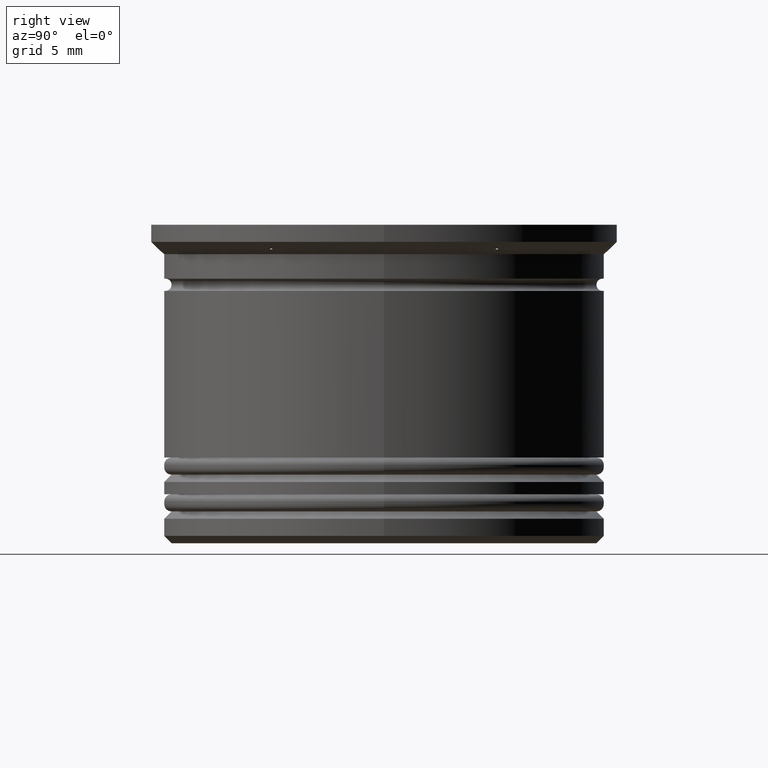
[diagram: clean part render]
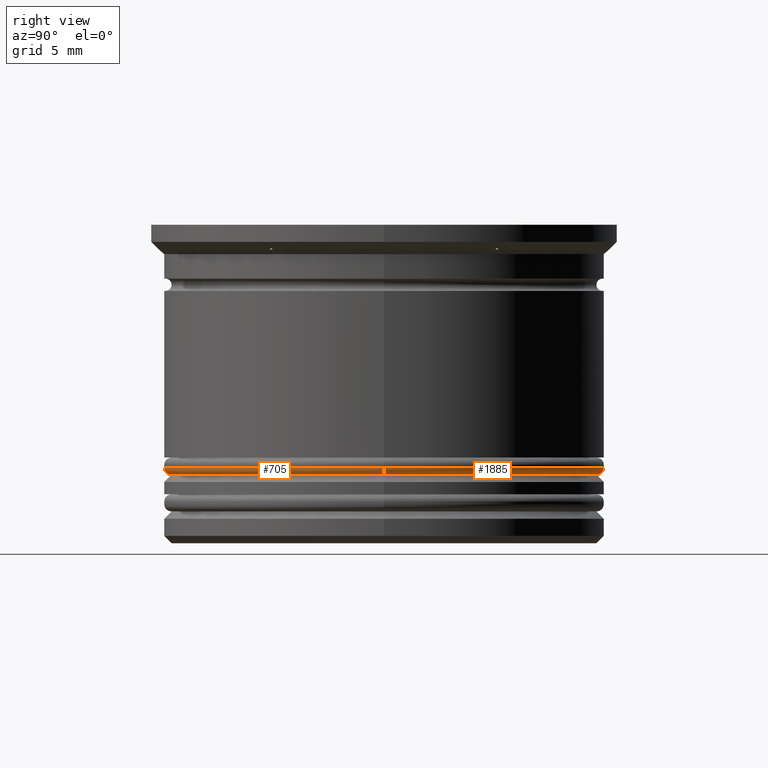
[diagram: same view with one multi-face feature highlighted, each face labeled with its STEP entity id]
A machine part, right view. The highlighted faces form ONE feature: a constant-radius fillet chain: 2 tangent blend faces with common blend radius 0.3 mm. The faces share edges in the B-rep.
Their STEP definitions:
[1] entity #705 (Torus):
#27 = AXIS2_PLACEMENT_3D ( 'NONE', #562, #1542, #39 ) ;
#39 = DIRECTION ( 'NONE',  ( 0.000000000000000000, 0.000000000000000000, -1.000000000000000000 ) ) ;
#52 = DIRECTION ( 'NONE',  ( 1.000000000000000000, 0.000000000000000000, 0.000000000000000000 ) ) ;
#58 = CIRCLE ( 'NONE', #739, 9.000000000000001776 ) ;
#68 = EDGE_LOOP ( 'NONE', ( #826, #850, #1081, #665 ) ) ;
#127 = AXIS2_PLACEMENT_3D ( 'NONE', #1931, #1407, #1599 ) ;
#183 = EDGE_CURVE ( 'NONE', #2085, #1976, #2018, .T. ) ;
#266 = VERTEX_POINT ( 'NONE', #420 ) ;
#277 = EDGE_CURVE ( 'NONE', #266, #2085, #982, .T. ) ;
#350 = FACE_OUTER_BOUND ( 'NONE', #68, .T. ) ;
#378 = EDGE_CURVE ( 'NONE', #266, #1048, #1874, .T. ) ;
#420 = CARTESIAN_POINT ( 'NONE',  ( 8.700000000000001066, 0.000000000000000000, -10.20000000000000639 ) ) ;
#562 = CARTESIAN_POINT ( 'NONE',  ( 8.700000000000001066, 0.000000000000000000, -9.900000000000005684 ) ) ;
#665 = ORIENTED_EDGE ( 'NONE', *, *, #1927, .F. ) ;
#705 = ADVANCED_FACE ( 'NONE', ( #350 ), #1712, .T. ) ;
#739 = AXIS2_PLACEMENT_3D ( 'NONE', #1401, #1916, #1240 ) ;
#826 = ORIENTED_EDGE ( 'NONE', *, *, #183, .F. ) ;
#850 = ORIENTED_EDGE ( 'NONE', *, *, #277, .F. ) ;
#982 = CIRCLE ( 'NONE', #1794, 8.700000000000001066 ) ;
#1048 = VERTEX_POINT ( 'NONE', #1875 ) ;
#1081 = ORIENTED_EDGE ( 'NONE', *, *, #378, .T. ) ;
#1103 = AXIS2_PLACEMENT_3D ( 'NONE', #1629, #1144, #1490 ) ;
#1144 = DIRECTION ( 'NONE',  ( 0.000000000000000000, 0.000000000000000000, 1.000000000000000000 ) ) ;
#1227 = CARTESIAN_POINT ( 'NONE',  ( 0.000000000000000000, 0.000000000000000000, -10.20000000000000639 ) ) ;
#1240 = DIRECTION ( 'NONE',  ( 1.000000000000000000, 0.000000000000000000, 0.000000000000000000 ) ) ;
#1401 = CARTESIAN_POINT ( 'NONE',  ( 0.000000000000000000, 0.000000000000000000, -9.900000000000005684 ) ) ;
#1407 = DIRECTION ( 'NONE',  ( 1.224646799147353207E-16, 1.000000000000000000, -0.000000000000000000 ) ) ;
#1490 = DIRECTION ( 'NONE',  ( 1.000000000000000000, 0.000000000000000000, 0.000000000000000000 ) ) ;
#1542 = DIRECTION ( 'NONE',  ( 0.000000000000000000, -1.000000000000000000, 0.000000000000000000 ) ) ;
#1599 = DIRECTION ( 'NONE',  ( -1.000000000000000000, 1.224646799147353207E-16, 0.000000000000000000 ) ) ;
#1629 = CARTESIAN_POINT ( 'NONE',  ( 0.000000000000000000, 0.000000000000000000, -9.900000000000005684 ) ) ;
#1700 = CARTESIAN_POINT ( 'NONE',  ( -9.000000000000001776, 1.102182119232617911E-15, -9.900000000000005684 ) ) ;
#1712 = TOROIDAL_SURFACE ( 'NONE', #1103, 8.700000000000001066, 0.2999999999999999889 ) ;
#1794 = AXIS2_PLACEMENT_3D ( 'NONE', #1227, #2094, #52 ) ;
#1869 = CARTESIAN_POINT ( 'NONE',  ( -8.700000000000001066, 1.083812417245407678E-15, -10.20000000000000639 ) ) ;
#1874 = CIRCLE ( 'NONE', #27, 0.2999999999999999334 ) ;
#1875 = CARTESIAN_POINT ( 'NONE',  ( 9.000000000000001776, 0.000000000000000000, -9.900000000000005684 ) ) ;
#1916 = DIRECTION ( 'NONE',  ( 0.000000000000000000, 0.000000000000000000, 1.000000000000000000 ) ) ;
#1927 = EDGE_CURVE ( 'NONE', #1976, #1048, #58, .T. ) ;
#1931 = CARTESIAN_POINT ( 'NONE',  ( -8.700000000000001066, 1.065442715258197446E-15, -9.900000000000005684 ) ) ;
#1976 = VERTEX_POINT ( 'NONE', #1700 ) ;
#2018 = CIRCLE ( 'NONE', #127, 0.2999999999999999334 ) ;
#2085 = VERTEX_POINT ( 'NONE', #1869 ) ;
#2094 = DIRECTION ( 'NONE',  ( -0.000000000000000000, -0.000000000000000000, -1.000000000000000000 ) ) ;
[2] entity #1885 (Torus):
#27 = AXIS2_PLACEMENT_3D ( 'NONE', #562, #1542, #39 ) ;
#39 = DIRECTION ( 'NONE',  ( 0.000000000000000000, 0.000000000000000000, -1.000000000000000000 ) ) ;
#127 = AXIS2_PLACEMENT_3D ( 'NONE', #1931, #1407, #1599 ) ;
#183 = EDGE_CURVE ( 'NONE', #2085, #1976, #2018, .T. ) ;
#266 = VERTEX_POINT ( 'NONE', #420 ) ;
#377 = CIRCLE ( 'NONE', #1089, 9.000000000000001776 ) ;
#378 = EDGE_CURVE ( 'NONE', #266, #1048, #1874, .T. ) ;
#396 = ORIENTED_EDGE ( 'NONE', *, *, #1461, .F. ) ;
#420 = CARTESIAN_POINT ( 'NONE',  ( 8.700000000000001066, 0.000000000000000000, -10.20000000000000639 ) ) ;
#562 = CARTESIAN_POINT ( 'NONE',  ( 8.700000000000001066, 0.000000000000000000, -9.900000000000005684 ) ) ;
#618 = DIRECTION ( 'NONE',  ( 0.000000000000000000, 0.000000000000000000, 1.000000000000000000 ) ) ;
#719 = DIRECTION ( 'NONE',  ( 1.000000000000000000, 0.000000000000000000, 0.000000000000000000 ) ) ;
#750 = EDGE_CURVE ( 'NONE', #2085, #266, #1083, .T. ) ;
#808 = AXIS2_PLACEMENT_3D ( 'NONE', #1209, #1851, #1541 ) ;
#868 = AXIS2_PLACEMENT_3D ( 'NONE', #1540, #1890, #719 ) ;
#886 = FACE_OUTER_BOUND ( 'NONE', #1436, .T. ) ;
#1048 = VERTEX_POINT ( 'NONE', #1875 ) ;
#1083 = CIRCLE ( 'NONE', #868, 8.700000000000001066 ) ;
#1089 = AXIS2_PLACEMENT_3D ( 'NONE', #1441, #618, #1281 ) ;
#1209 = CARTESIAN_POINT ( 'NONE',  ( 0.000000000000000000, 0.000000000000000000, -9.900000000000005684 ) ) ;
#1281 = DIRECTION ( 'NONE',  ( 1.000000000000000000, 0.000000000000000000, 0.000000000000000000 ) ) ;
#1365 = ORIENTED_EDGE ( 'NONE', *, *, #378, .F. ) ;
#1407 = DIRECTION ( 'NONE',  ( 1.224646799147353207E-16, 1.000000000000000000, -0.000000000000000000 ) ) ;
#1436 = EDGE_LOOP ( 'NONE', ( #1775, #1977, #396, #1365 ) ) ;
#1441 = CARTESIAN_POINT ( 'NONE',  ( 0.000000000000000000, 0.000000000000000000, -9.900000000000005684 ) ) ;
#1461 = EDGE_CURVE ( 'NONE', #1048, #1976, #377, .T. ) ;
#1540 = CARTESIAN_POINT ( 'NONE',  ( 0.000000000000000000, 0.000000000000000000, -10.20000000000000639 ) ) ;
#1541 = DIRECTION ( 'NONE',  ( 1.000000000000000000, 0.000000000000000000, 0.000000000000000000 ) ) ;
#1542 = DIRECTION ( 'NONE',  ( 0.000000000000000000, -1.000000000000000000, 0.000000000000000000 ) ) ;
#1599 = DIRECTION ( 'NONE',  ( -1.000000000000000000, 1.224646799147353207E-16, 0.000000000000000000 ) ) ;
#1620 = TOROIDAL_SURFACE ( 'NONE', #808, 8.700000000000001066, 0.2999999999999999889 ) ;
#1700 = CARTESIAN_POINT ( 'NONE',  ( -9.000000000000001776, 1.102182119232617911E-15, -9.900000000000005684 ) ) ;
#1775 = ORIENTED_EDGE ( 'NONE', *, *, #750, .F. ) ;
#1851 = DIRECTION ( 'NONE',  ( 0.000000000000000000, 0.000000000000000000, 1.000000000000000000 ) ) ;
#1869 = CARTESIAN_POINT ( 'NONE',  ( -8.700000000000001066, 1.083812417245407678E-15, -10.20000000000000639 ) ) ;
#1874 = CIRCLE ( 'NONE', #27, 0.2999999999999999334 ) ;
#1875 = CARTESIAN_POINT ( 'NONE',  ( 9.000000000000001776, 0.000000000000000000, -9.900000000000005684 ) ) ;
#1885 = ADVANCED_FACE ( 'NONE', ( #886 ), #1620, .T. ) ;
#1890 = DIRECTION ( 'NONE',  ( -0.000000000000000000, -0.000000000000000000, -1.000000000000000000 ) ) ;
#1931 = CARTESIAN_POINT ( 'NONE',  ( -8.700000000000001066, 1.065442715258197446E-15, -9.900000000000005684 ) ) ;
#1976 = VERTEX_POINT ( 'NONE', #1700 ) ;
#1977 = ORIENTED_EDGE ( 'NONE', *, *, #183, .T. ) ;
#2018 = CIRCLE ( 'NONE', #127, 0.2999999999999999334 ) ;
#2085 = VERTEX_POINT ( 'NONE', #1869 ) ;